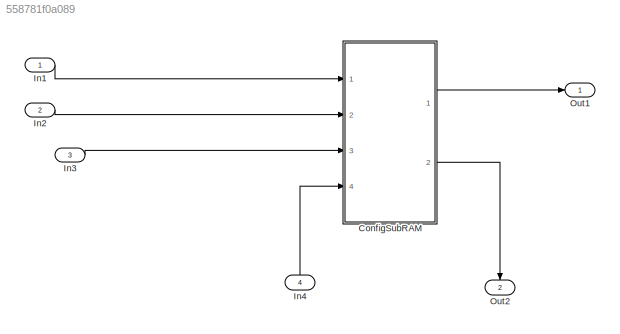
MODEL slx_558781f0a089
KIND model
CONFIG AbsTol = auto
CONFIG FixedStep = auto
CONFIG MaxStep = auto
CONFIG MinStep = auto
CONFIG PreLoadFcn = Param_fir
CONFIG RelTol = 1e-3
CONFIG SampleTimeConstraint = Unconstrained
CONFIG Solver = FixedStepDiscrete
CONFIG SolverMode = SingleTasking
CONFIG SolverName = FixedStepDiscrete
CONFIG StartTime = 0.0
CONFIG StopTime = SimEnd+Ts2*NTaps*2
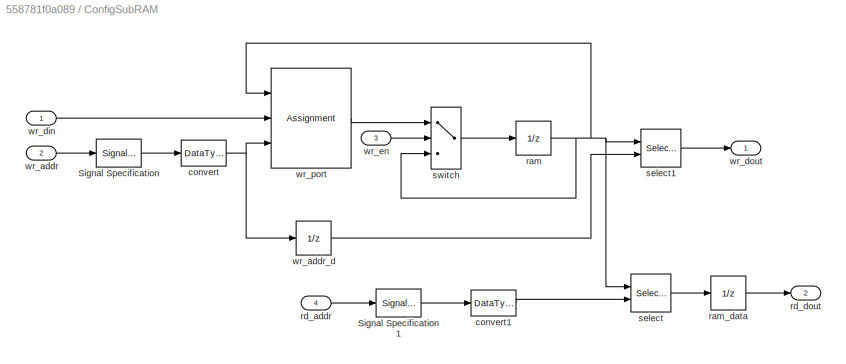
BLOCK [SubSystem] ConfigSubRAM
  ErrorFcn = hdlblkmask_errfcn
  Ports = [4, 2]
  RequestExecContextInheritance = off
  Variant = off
BLOCK [SignalSpecification] ConfigSubRAM/Signal Specification
  Dimensions = 1
  OutDataTypeStr = fixdt(0,ram_size,0)
BLOCK [SignalSpecification] ConfigSubRAM/Signal Specification1
  Dimensions = 1
  OutDataTypeStr = fixdt(0,ram_size,0)
BLOCK [DataTypeConversion] ConfigSubRAM/convert
  OutDataTypeStr = uint16
  RndMeth = Floor
  SaturateOnIntegerOverflow = off
BLOCK [DataTypeConversion] ConfigSubRAM/convert1
  OutDataTypeStr = uint16
  RndMeth = Floor
  SaturateOnIntegerOverflow = off
BLOCK [UnitDelay] ConfigSubRAM/ram
  InputProcessing = Elements as channels (sample based)
  SampleTime = -1
BLOCK [UnitDelay] ConfigSubRAM/ram_data
  InputProcessing = Elements as channels (sample based)
  SampleTime = -1
BLOCK [Inport] ConfigSubRAM/rd_addr
  IconDisplay = Port number
  Port = 4
BLOCK [Outport] ConfigSubRAM/rd_dout
  IconDisplay = Port number
  Port = 2
BLOCK [Selector] ConfigSubRAM/select
  IndexMode = Zero-based
  IndexOptions = Index vector (port)
  Indices = [1 3]
  InputPortWidth = 2^ram_size
  OutputSizes = 1
  Ports = [2, 1]
BLOCK [Selector] ConfigSubRAM/select1
  IndexMode = Zero-based
  IndexOptions = Index vector (port)
  Indices = [1 3]
  InputPortWidth = 2^ram_size
  OutputSizes = 1
  Ports = [2, 1]
BLOCK [Switch] ConfigSubRAM/switch
  Criteria = u2 ~= 0
  InputSameDT = off
  SaturateOnIntegerOverflow = off
BLOCK [Inport] ConfigSubRAM/wr_addr
  IconDisplay = Port number
  Port = 2
BLOCK [UnitDelay] ConfigSubRAM/wr_addr_d
  InputProcessing = Elements as channels (sample based)
  SampleTime = -1
BLOCK [Inport] ConfigSubRAM/wr_din
  IconDisplay = Port number
BLOCK [Outport] ConfigSubRAM/wr_dout
  IconDisplay = Port number
BLOCK [Inport] ConfigSubRAM/wr_en
  IconDisplay = Port number
  OutDataTypeStr = boolean
  Port = 3
BLOCK [Assignment] ConfigSubRAM/wr_port
  IndexMode = Zero-based
  IndexOptions = Index vector (port)
  Indices = 1
  OutputSizes = [1 1]
  Ports = [3, 1]
BLOCK [Inport] In1
  IconDisplay = Port number
  OutDataTypeStr = fixdt('sfix16_En15')
  PortDimensions = 1
  SampleTime = [7.8125000000000002e-05,0]
  SamplingMode = Sample based
  SignalType = real
BLOCK [Inport] In2
  IconDisplay = Port number
  OutDataTypeStr = fixdt('ufix7')
  Port = 2
  PortDimensions = 1
  SampleTime = [7.8125000000000002e-05,0]
  SamplingMode = Sample based
  SignalType = real
BLOCK [Inport] In3
  IconDisplay = Port number
  OutDataTypeStr = boolean
  Port = 3
  PortDimensions = 1
  SampleTime = [7.8125000000000002e-05,0]
  SamplingMode = Sample based
  SignalType = real
BLOCK [Inport] In4
  IconDisplay = Port number
  OutDataTypeStr = fixdt('ufix7')
  Port = 4
  PortDimensions = 1
  SampleTime = [7.8125000000000002e-05,0]
  SamplingMode = Sample based
  SignalType = real
BLOCK [Outport] Out1
  IconDisplay = Port number
  OutDataTypeStr = fixdt('sfix16_En15')
  PortDimensions = 1
  SampleTime = [7.8125000000000002e-05,0]
  SamplingMode = Sample based
  SignalType = real
BLOCK [Outport] Out2
  IconDisplay = Port number
  OutDataTypeStr = fixdt('sfix16_En15')
  Port = 2
  PortDimensions = 1
  SampleTime = [7.8125000000000002e-05,0]
  SamplingMode = Sample based
  SignalType = real
LINE ConfigSubRAM/Signal Specification1:1 -> ConfigSubRAM/convert1:1
LINE ConfigSubRAM/Signal Specification:1 -> ConfigSubRAM/convert:1
LINE ConfigSubRAM/convert1:1 -> ConfigSubRAM/select:2
NET ConfigSubRAM/convert:1 -> ConfigSubRAM/wr_addr_d:1, ConfigSubRAM/wr_port:3
NET ConfigSubRAM/ram:1 -> ConfigSubRAM/select1:1, ConfigSubRAM/select:1, ConfigSubRAM/switch:3, ConfigSubRAM/wr_port:1
LINE ConfigSubRAM/ram_data:1 -> ConfigSubRAM/rd_dout:1
LINE ConfigSubRAM/rd_addr:1 -> ConfigSubRAM/Signal Specification1:1
LINE ConfigSubRAM/select1:1 -> ConfigSubRAM/wr_dout:1
LINE ConfigSubRAM/select:1 -> ConfigSubRAM/ram_data:1
LINE ConfigSubRAM/switch:1 -> ConfigSubRAM/ram:1
LINE ConfigSubRAM/wr_addr:1 -> ConfigSubRAM/Signal Specification:1
LINE ConfigSubRAM/wr_addr_d:1 -> ConfigSubRAM/select1:2
LINE ConfigSubRAM/wr_din:1 -> ConfigSubRAM/wr_port:2
LINE ConfigSubRAM/wr_en:1 -> ConfigSubRAM/switch:2
LINE ConfigSubRAM/wr_port:1 -> ConfigSubRAM/switch:1
LINE ConfigSubRAM:1 -> Out1:1
LINE ConfigSubRAM:2 -> Out2:1
LINE In1:1 -> ConfigSubRAM:1
LINE In2:1 -> ConfigSubRAM:2
LINE In3:1 -> ConfigSubRAM:3
LINE In4:1 -> ConfigSubRAM:4
note: NET lines group one-source signal fan-out (src -> all destinations, sorted); 1:1 wires keep LINE
